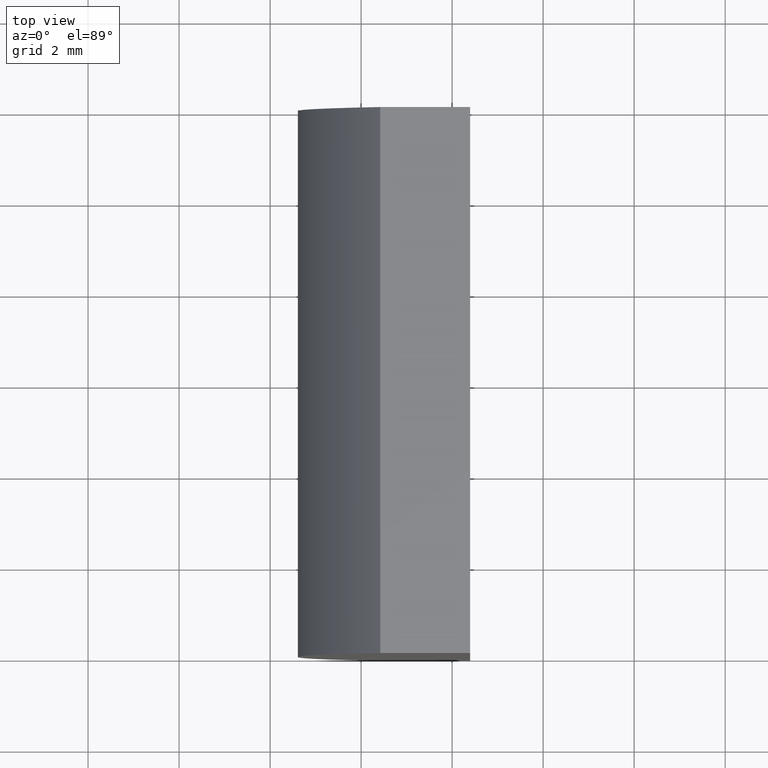
[diagram: clean part render]
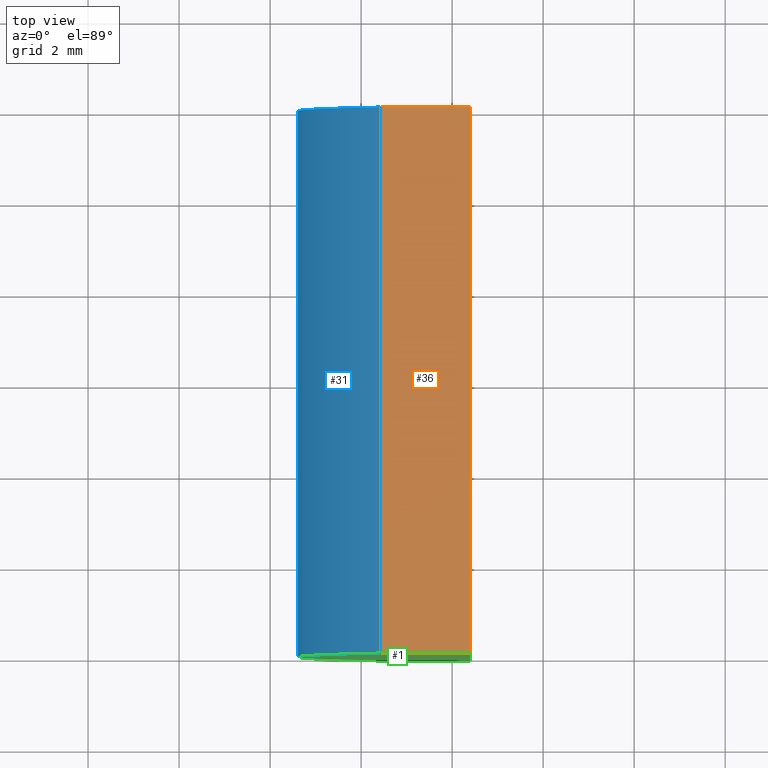
[diagram: same view with three faces highlighted in distinct colors, each labeled with its STEP entity id]
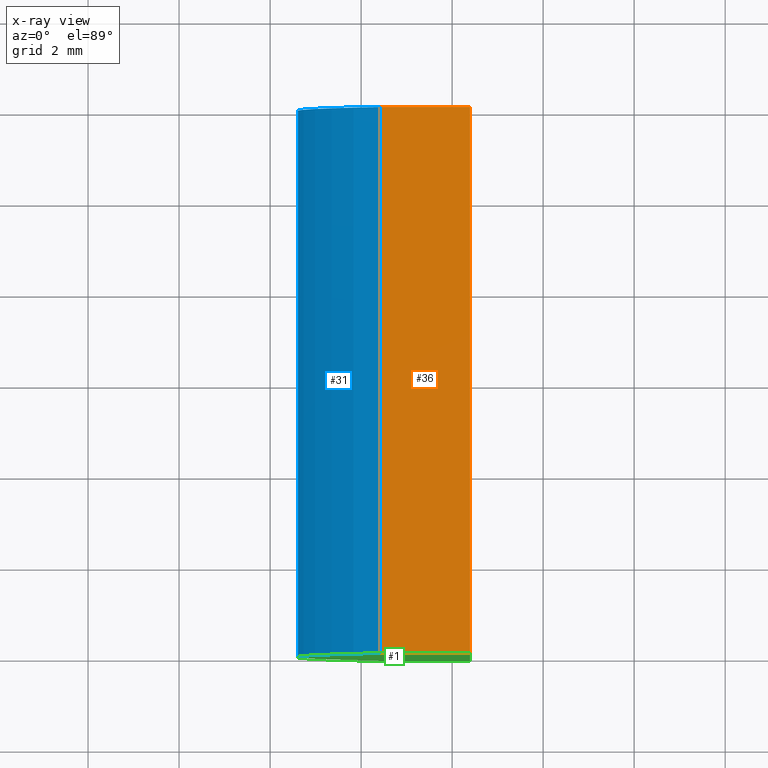
[diagram: x-ray of the same camera — body ghosted, the three highlighted faces saturated]
A machine part, top view with three faces highlighted in distinct colors.
The next image is the same camera in x-ray (body ghosted, the three faces saturated) — at least one of them is partly hidden behind the body in this view.
Their STEP definitions:

[orange] entity #36 — the highlighted planar face has unit normal (0, 0, -1).
#2 = CARTESIAN_POINT ( 'NONE',  ( -1.579237509164058500, 12.00000000000000000, 5.000000000000000000 ) ) ;
#10 = EDGE_CURVE ( 'NONE', #38, #102, #88, .T. ) ;
#24 = LINE ( 'NONE', #114, #28 ) ;
#28 = VECTOR ( 'NONE', #165, 1000.000000000000000 ) ;
#29 = VERTEX_POINT ( 'NONE', #43 ) ;
#30 = DIRECTION ( 'NONE',  ( 1.000000000000000000, 0.0000000000000000000, 0.0000000000000000000 ) ) ;
#35 = ORIENTED_EDGE ( 'NONE', *, *, #160, .F. ) ;
#36 = ADVANCED_FACE ( 'NONE', ( #194 ), #62, .F. ) ;
#37 = AXIS2_PLACEMENT_3D ( 'NONE', #203, #109, #127 ) ;
#38 = VERTEX_POINT ( 'NONE', #197 ) ;
#41 = LINE ( 'NONE', #2, #70 ) ;
#42 = CARTESIAN_POINT ( 'NONE',  ( -1.579237509164058500, 0.0000000000000000000, 5.000000000000000000 ) ) ;
#43 = CARTESIAN_POINT ( 'NONE',  ( 0.3952043348512662100, 12.00000000000000000, 5.000000000000000000 ) ) ;
#47 = CARTESIAN_POINT ( 'NONE',  ( -1.579237509164058500, 12.00000000000000000, 5.000000000000000000 ) ) ;
#60 = ORIENTED_EDGE ( 'NONE', *, *, #87, .F. ) ;
#62 = PLANE ( 'NONE',  #37 ) ;
#64 = CARTESIAN_POINT ( 'NONE',  ( -1.579237509164058500, 12.00000000000000000, 5.000000000000000000 ) ) ;
#70 = VECTOR ( 'NONE', #189, 1000.000000000000000 ) ;
#87 = EDGE_CURVE ( 'NONE', #150, #29, #116, .T. ) ;
#88 = LINE ( 'NONE', #42, #201 ) ;
#102 = VERTEX_POINT ( 'NONE', #190 ) ;
#109 = DIRECTION ( 'NONE',  ( 0.0000000000000000000, 0.0000000000000000000, -1.000000000000000000 ) ) ;
#113 = DIRECTION ( 'NONE',  ( 1.000000000000000000, 0.0000000000000000000, 0.0000000000000000000 ) ) ;
#114 = CARTESIAN_POINT ( 'NONE',  ( 0.3952043348512662100, 12.00000000000000000, 5.000000000000000000 ) ) ;
#116 = LINE ( 'NONE', #47, #146 ) ;
#119 = EDGE_LOOP ( 'NONE', ( #136, #35, #60, #159 ) ) ;
#127 = DIRECTION ( 'NONE',  ( -1.000000000000000000, 0.0000000000000000000, -0.0000000000000000000 ) ) ;
#136 = ORIENTED_EDGE ( 'NONE', *, *, #10, .T. ) ;
#146 = VECTOR ( 'NONE', #113, 1000.000000000000000 ) ;
#150 = VERTEX_POINT ( 'NONE', #64 ) ;
#159 = ORIENTED_EDGE ( 'NONE', *, *, #195, .T. ) ;
#160 = EDGE_CURVE ( 'NONE', #29, #102, #24, .T. ) ;
#165 = DIRECTION ( 'NONE',  ( -0.0000000000000000000, -1.000000000000000000, -0.0000000000000000000 ) ) ;
#189 = DIRECTION ( 'NONE',  ( -0.0000000000000000000, -1.000000000000000000, -0.0000000000000000000 ) ) ;
#190 = CARTESIAN_POINT ( 'NONE',  ( 0.3952043348512662100, 0.0000000000000000000, 5.000000000000000000 ) ) ;
#194 = FACE_OUTER_BOUND ( 'NONE', #119, .T. ) ;
#195 = EDGE_CURVE ( 'NONE', #150, #38, #41, .T. ) ;
#197 = CARTESIAN_POINT ( 'NONE',  ( -1.579237509164058500, 0.0000000000000000000, 5.000000000000000000 ) ) ;
#201 = VECTOR ( 'NONE', #30, 1000.000000000000000 ) ;
#203 = CARTESIAN_POINT ( 'NONE',  ( -1.579237509164058500, 12.00000000000000000, 5.000000000000000000 ) ) ;

[blue] entity #31 — the highlighted cylindrical surface (partial cylindrical patch) has radius 7.76 mm, axis along (-0, -1, -0).
#2 = CARTESIAN_POINT ( 'NONE',  ( -1.579237509164058500, 12.00000000000000000, 5.000000000000000000 ) ) ;
#3 = EDGE_CURVE ( 'NONE', #82, #86, #166, .T. ) ;
#20 = CARTESIAN_POINT ( 'NONE',  ( -1.579237509164058500, 12.00000000000000000, -5.000000000000000000 ) ) ;
#25 = DIRECTION ( 'NONE',  ( -0.0000000000000000000, -1.000000000000000000, -0.0000000000000000000 ) ) ;
#26 = CARTESIAN_POINT ( 'NONE',  ( -1.579237509164058500, 0.0000000000000000000, -5.000000000000000000 ) ) ;
#31 = ADVANCED_FACE ( 'NONE', ( #95 ), #161, .T. ) ;
#34 = DIRECTION ( 'NONE',  ( 0.0000000000000000000, 1.000000000000000000, 0.0000000000000000000 ) ) ;
#38 = VERTEX_POINT ( 'NONE', #197 ) ;
#41 = LINE ( 'NONE', #2, #70 ) ;
#44 = CIRCLE ( 'NONE', #144, 7.759999999999999800 ) ;
#48 = DIRECTION ( 'NONE',  ( 0.0000000000000000000, 0.0000000000000000000, -1.000000000000000000 ) ) ;
#51 = CARTESIAN_POINT ( 'NONE',  ( -1.579237509164058500, 12.00000000000000000, -5.000000000000000000 ) ) ;
#55 = EDGE_CURVE ( 'NONE', #82, #150, #44, .T. ) ;
#64 = CARTESIAN_POINT ( 'NONE',  ( -1.579237509164058500, 12.00000000000000000, 5.000000000000000000 ) ) ;
#70 = VECTOR ( 'NONE', #189, 1000.000000000000000 ) ;
#82 = VERTEX_POINT ( 'NONE', #20 ) ;
#86 = VERTEX_POINT ( 'NONE', #26 ) ;
#91 = DIRECTION ( 'NONE',  ( 0.0000000000000000000, 0.0000000000000000000, 1.000000000000000000 ) ) ;
#92 = EDGE_LOOP ( 'NONE', ( #125, #170, #98, #163 ) ) ;
#95 = FACE_OUTER_BOUND ( 'NONE', #92, .T. ) ;
#97 = AXIS2_PLACEMENT_3D ( 'NONE', #123, #158, #48 ) ;
#98 = ORIENTED_EDGE ( 'NONE', *, *, #55, .F. ) ;
#100 = VECTOR ( 'NONE', #25, 1000.000000000000000 ) ;
#120 = CIRCLE ( 'NONE', #173, 7.759999999999999800 ) ;
#121 = DIRECTION ( 'NONE',  ( 0.0000000000000000000, 1.000000000000000000, 0.0000000000000000000 ) ) ;
#123 = CARTESIAN_POINT ( 'NONE',  ( 4.355204334851265500, 12.00000000000000000, 4.286263797015675000E-017 ) ) ;
#125 = ORIENTED_EDGE ( 'NONE', *, *, #147, .T. ) ;
#128 = CARTESIAN_POINT ( 'NONE',  ( 4.355204334851265500, 0.0000000000000000000, 4.286263797015675000E-017 ) ) ;
#143 = DIRECTION ( 'NONE',  ( 0.0000000000000000000, 0.0000000000000000000, 1.000000000000000000 ) ) ;
#144 = AXIS2_PLACEMENT_3D ( 'NONE', #184, #121, #91 ) ;
#147 = EDGE_CURVE ( 'NONE', #86, #38, #120, .T. ) ;
#150 = VERTEX_POINT ( 'NONE', #64 ) ;
#158 = DIRECTION ( 'NONE',  ( -0.0000000000000000000, -1.000000000000000000, -0.0000000000000000000 ) ) ;
#161 = CYLINDRICAL_SURFACE ( 'NONE', #97, 7.759999999999999800 ) ;
#163 = ORIENTED_EDGE ( 'NONE', *, *, #3, .T. ) ;
#166 = LINE ( 'NONE', #51, #100 ) ;
#170 = ORIENTED_EDGE ( 'NONE', *, *, #195, .F. ) ;
#173 = AXIS2_PLACEMENT_3D ( 'NONE', #128, #34, #143 ) ;
#184 = CARTESIAN_POINT ( 'NONE',  ( 4.355204334851265500, 12.00000000000000000, 4.286263797015675000E-017 ) ) ;
#189 = DIRECTION ( 'NONE',  ( -0.0000000000000000000, -1.000000000000000000, -0.0000000000000000000 ) ) ;
#195 = EDGE_CURVE ( 'NONE', #150, #38, #41, .T. ) ;
#197 = CARTESIAN_POINT ( 'NONE',  ( -1.579237509164058500, 0.0000000000000000000, 5.000000000000000000 ) ) ;

[green] entity #1 — the highlighted planar face has unit normal (0, 1, 0).
#1 = ADVANCED_FACE ( 'NONE', ( #104 ), #153, .F. ) ;
#10 = EDGE_CURVE ( 'NONE', #38, #102, #88, .T. ) ;
#26 = CARTESIAN_POINT ( 'NONE',  ( -1.579237509164058500, 0.0000000000000000000, -5.000000000000000000 ) ) ;
#30 = DIRECTION ( 'NONE',  ( 1.000000000000000000, 0.0000000000000000000, 0.0000000000000000000 ) ) ;
#34 = DIRECTION ( 'NONE',  ( 0.0000000000000000000, 1.000000000000000000, 0.0000000000000000000 ) ) ;
#38 = VERTEX_POINT ( 'NONE', #197 ) ;
#40 = ORIENTED_EDGE ( 'NONE', *, *, #147, .F. ) ;
#42 = CARTESIAN_POINT ( 'NONE',  ( -1.579237509164058500, 0.0000000000000000000, 5.000000000000000000 ) ) ;
#49 = VECTOR ( 'NONE', #110, 1000.000000000000000 ) ;
#53 = DIRECTION ( 'NONE',  ( 0.0000000000000000000, 1.000000000000000000, 0.0000000000000000000 ) ) ;
#58 = LINE ( 'NONE', #192, #80 ) ;
#80 = VECTOR ( 'NONE', #172, 1000.000000000000000 ) ;
#86 = VERTEX_POINT ( 'NONE', #26 ) ;
#88 = LINE ( 'NONE', #42, #201 ) ;
#102 = VERTEX_POINT ( 'NONE', #190 ) ;
#104 = FACE_OUTER_BOUND ( 'NONE', #187, .T. ) ;
#107 = CARTESIAN_POINT ( 'NONE',  ( 4.355204334851265500, 0.0000000000000000000, 4.286263797015675000E-017 ) ) ;
#110 = DIRECTION ( 'NONE',  ( -1.000000000000000000, -0.0000000000000000000, 8.785892991656764200E-016 ) ) ;
#115 = ORIENTED_EDGE ( 'NONE', *, *, #10, .F. ) ;
#117 = AXIS2_PLACEMENT_3D ( 'NONE', #107, #53, #164 ) ;
#120 = CIRCLE ( 'NONE', #173, 7.759999999999999800 ) ;
#128 = CARTESIAN_POINT ( 'NONE',  ( 4.355204334851265500, 0.0000000000000000000, 4.286263797015675000E-017 ) ) ;
#129 = LINE ( 'NONE', #139, #49 ) ;
#132 = ORIENTED_EDGE ( 'NONE', *, *, #191, .F. ) ;
#133 = EDGE_CURVE ( 'NONE', #182, #86, #129, .T. ) ;
#134 = ORIENTED_EDGE ( 'NONE', *, *, #133, .F. ) ;
#139 = CARTESIAN_POINT ( 'NONE',  ( -1.579237509164058500, 0.0000000000000000000, -5.000000000000000000 ) ) ;
#143 = DIRECTION ( 'NONE',  ( 0.0000000000000000000, 0.0000000000000000000, 1.000000000000000000 ) ) ;
#147 = EDGE_CURVE ( 'NONE', #86, #38, #120, .T. ) ;
#153 = PLANE ( 'NONE',  #117 ) ;
#164 = DIRECTION ( 'NONE',  ( 0.0000000000000000000, -0.0000000000000000000, 1.000000000000000000 ) ) ;
#172 = DIRECTION ( 'NONE',  ( -3.035766082959411900E-016, -0.0000000000000000000, -1.000000000000000000 ) ) ;
#173 = AXIS2_PLACEMENT_3D ( 'NONE', #128, #34, #143 ) ;
#182 = VERTEX_POINT ( 'NONE', #183 ) ;
#183 = CARTESIAN_POINT ( 'NONE',  ( 0.3952043348512631600, 0.0000000000000000000, -5.000000000000001800 ) ) ;
#187 = EDGE_LOOP ( 'NONE', ( #40, #134, #132, #115 ) ) ;
#190 = CARTESIAN_POINT ( 'NONE',  ( 0.3952043348512662100, 0.0000000000000000000, 5.000000000000000000 ) ) ;
#191 = EDGE_CURVE ( 'NONE', #102, #182, #58, .T. ) ;
#192 = CARTESIAN_POINT ( 'NONE',  ( 0.3952043348512631600, 0.0000000000000000000, -5.000000000000001800 ) ) ;
#197 = CARTESIAN_POINT ( 'NONE',  ( -1.579237509164058500, 0.0000000000000000000, 5.000000000000000000 ) ) ;
#201 = VECTOR ( 'NONE', #30, 1000.000000000000000 ) ;